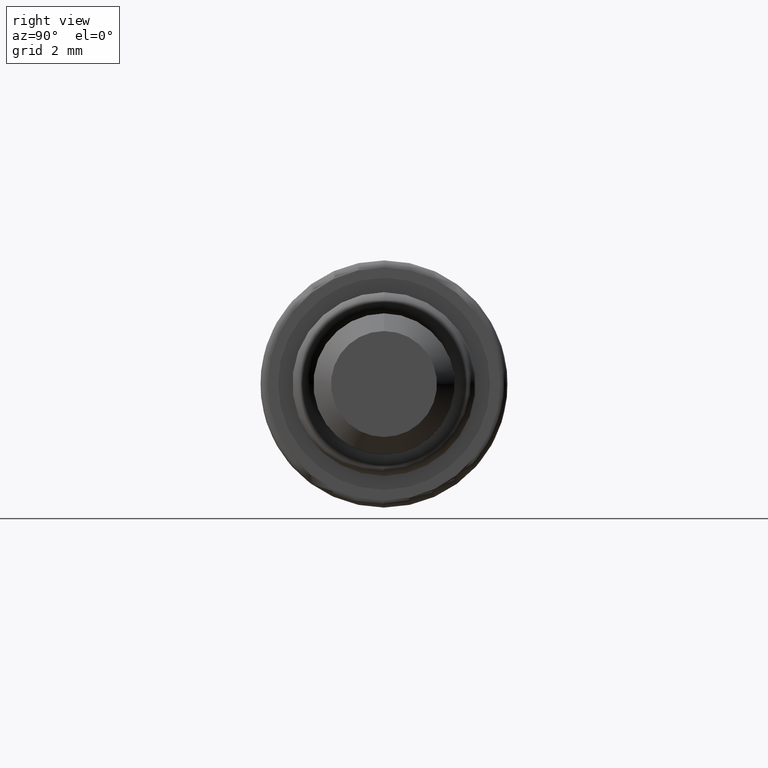
[diagram: clean part render]
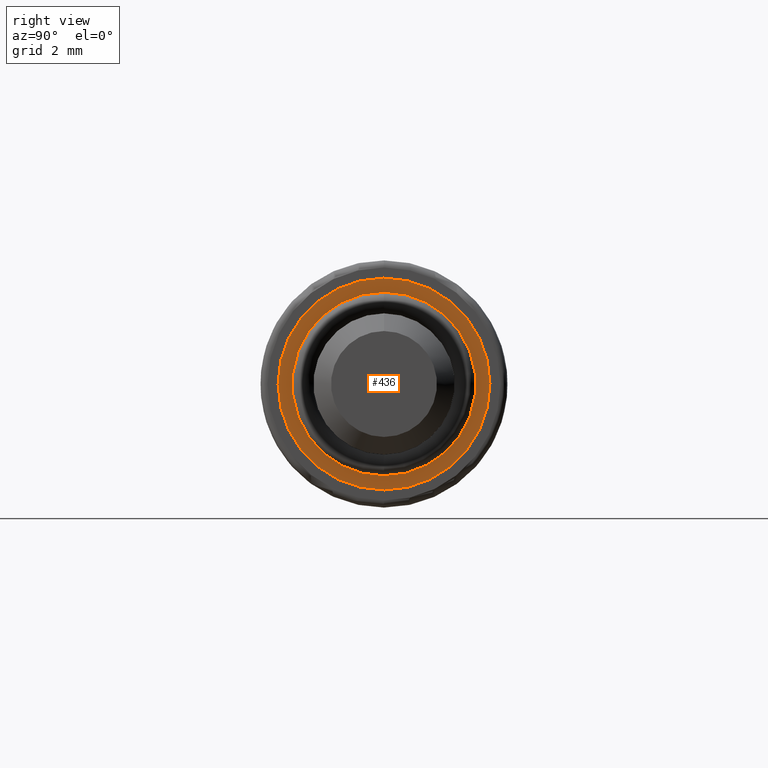
[diagram: same view with one face highlighted and labeled with its STEP entity id]
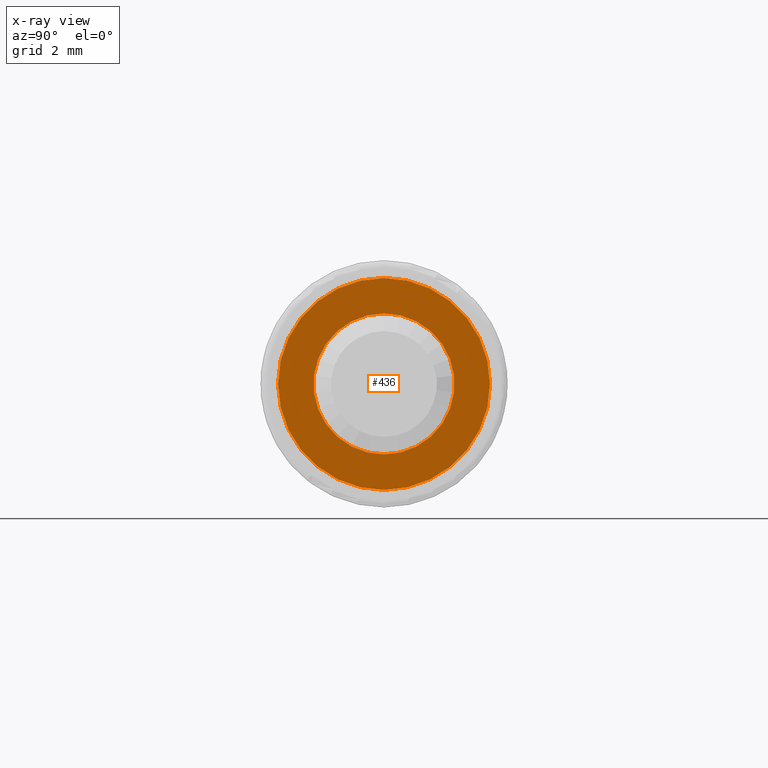
[diagram: x-ray of the same camera — body ghosted, the highlighted face saturated]
A machine part, right view. The second image highlights one B-rep face of the part: STEP entity #436.
The next image is the same camera in x-ray: the body ghosted, the highlighted face saturated — about 0% of this face is hidden behind the body in this view.
In plain terms, the highlighted planar face has unit normal (1, 0, 0).
Its self-contained STEP definition (entity closure, byte-faithful):
#19 = EDGE_CURVE ( 'NONE', #151, #352, #750, .T. ) ;
#24 = DIRECTION ( 'NONE',  ( 1.000000000000000000, 0.0000000000000000000, 0.0000000000000000000 ) ) ;
#64 = AXIS2_PLACEMENT_3D ( 'NONE', #494, #597, #682 ) ;
#99 = AXIS2_PLACEMENT_3D ( 'NONE', #668, #285, #727 ) ;
#115 = EDGE_CURVE ( 'NONE', #452, #530, #679, .T. ) ;
#137 = DIRECTION ( 'NONE',  ( 1.000000000000000000, 0.0000000000000000000, 0.0000000000000000000 ) ) ;
#151 = VERTEX_POINT ( 'NONE', #553 ) ;
#204 = CARTESIAN_POINT ( 'NONE',  ( -0.2999999999999999900, 0.0000000000000000000, 0.0000000000000000000 ) ) ;
#224 = CARTESIAN_POINT ( 'NONE',  ( -0.2999999999999999900, 0.0000000000000000000, -3.000000000000000400 ) ) ;
#237 = CARTESIAN_POINT ( 'NONE',  ( -0.2999999999999999900, 0.0000000000000000000, 0.0000000000000000000 ) ) ;
#262 = FACE_BOUND ( 'NONE', #293, .T. ) ;
#268 = DIRECTION ( 'NONE',  ( 1.000000000000000000, 0.0000000000000000000, 0.0000000000000000000 ) ) ;
#285 = DIRECTION ( 'NONE',  ( 1.000000000000000000, 0.0000000000000000000, 0.0000000000000000000 ) ) ;
#293 = EDGE_LOOP ( 'NONE', ( #753, #362 ) ) ;
#322 = CARTESIAN_POINT ( 'NONE',  ( -0.2999999999999999900, 0.0000000000000000000, 2.000000000000000000 ) ) ;
#352 = VERTEX_POINT ( 'NONE', #224 ) ;
#362 = ORIENTED_EDGE ( 'NONE', *, *, #536, .F. ) ;
#380 = AXIS2_PLACEMENT_3D ( 'NONE', #204, #137, #449 ) ;
#436 = ADVANCED_FACE ( 'NONE', ( #262, #788 ), #579, .T. ) ;
#449 = DIRECTION ( 'NONE',  ( 0.0000000000000000000, 0.0000000000000000000, -1.000000000000000000 ) ) ;
#452 = VERTEX_POINT ( 'NONE', #322 ) ;
#464 = CARTESIAN_POINT ( 'NONE',  ( -0.2999999999999999900, 2.449293598294706400E-016, -2.000000000000000000 ) ) ;
#494 = CARTESIAN_POINT ( 'NONE',  ( -0.2999999999999999900, 0.0000000000000000000, 0.0000000000000000000 ) ) ;
#511 = ORIENTED_EDGE ( 'NONE', *, *, #19, .T. ) ;
#519 = AXIS2_PLACEMENT_3D ( 'NONE', #237, #24, #657 ) ;
#530 = VERTEX_POINT ( 'NONE', #464 ) ;
#536 = EDGE_CURVE ( 'NONE', #530, #452, #724, .T. ) ;
#553 = CARTESIAN_POINT ( 'NONE',  ( -0.2999999999999999900, 3.673940397442060400E-016, 3.000000000000000400 ) ) ;
#579 = PLANE ( 'NONE',  #380 ) ;
#592 = EDGE_LOOP ( 'NONE', ( #701, #511 ) ) ;
#597 = DIRECTION ( 'NONE',  ( 1.000000000000000000, 0.0000000000000000000, 0.0000000000000000000 ) ) ;
#637 = CARTESIAN_POINT ( 'NONE',  ( -0.2999999999999999900, 0.0000000000000000000, 0.0000000000000000000 ) ) ;
#657 = DIRECTION ( 'NONE',  ( 0.0000000000000000000, 0.0000000000000000000, -1.000000000000000000 ) ) ;
#658 = CIRCLE ( 'NONE', #99, 3.000000000000000400 ) ;
#668 = CARTESIAN_POINT ( 'NONE',  ( -0.2999999999999999900, 0.0000000000000000000, 0.0000000000000000000 ) ) ;
#679 = CIRCLE ( 'NONE', #519, 2.000000000000000000 ) ;
#682 = DIRECTION ( 'NONE',  ( 0.0000000000000000000, 0.0000000000000000000, -1.000000000000000000 ) ) ;
#701 = ORIENTED_EDGE ( 'NONE', *, *, #719, .T. ) ;
#706 = AXIS2_PLACEMENT_3D ( 'NONE', #637, #268, #816 ) ;
#719 = EDGE_CURVE ( 'NONE', #352, #151, #658, .T. ) ;
#724 = CIRCLE ( 'NONE', #706, 2.000000000000000000 ) ;
#727 = DIRECTION ( 'NONE',  ( 0.0000000000000000000, 0.0000000000000000000, -1.000000000000000000 ) ) ;
#750 = CIRCLE ( 'NONE', #64, 3.000000000000000400 ) ;
#753 = ORIENTED_EDGE ( 'NONE', *, *, #115, .F. ) ;
#788 = FACE_OUTER_BOUND ( 'NONE', #592, .T. ) ;
#816 = DIRECTION ( 'NONE',  ( 0.0000000000000000000, 0.0000000000000000000, -1.000000000000000000 ) ) ;